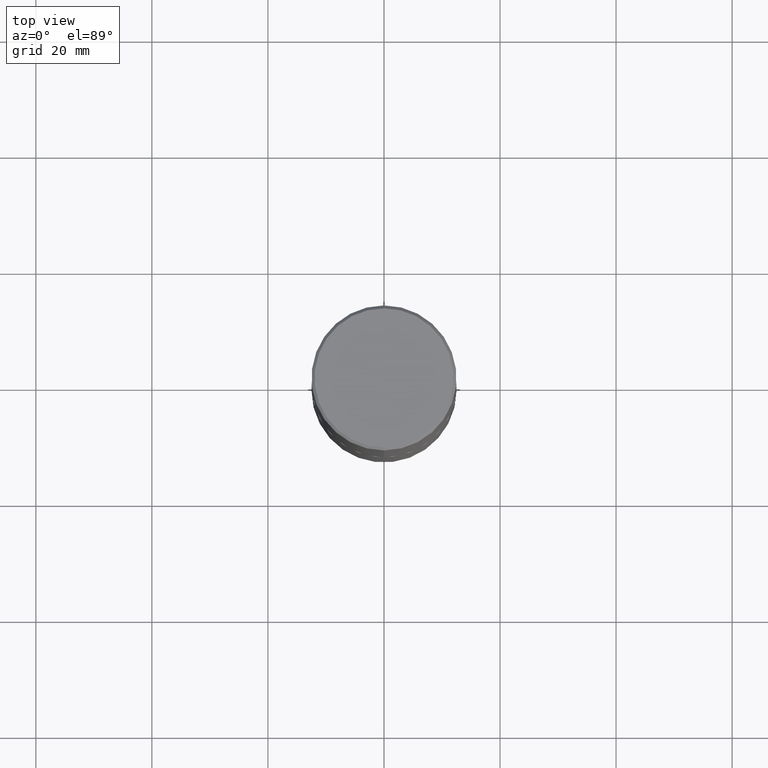
[diagram: clean part render]
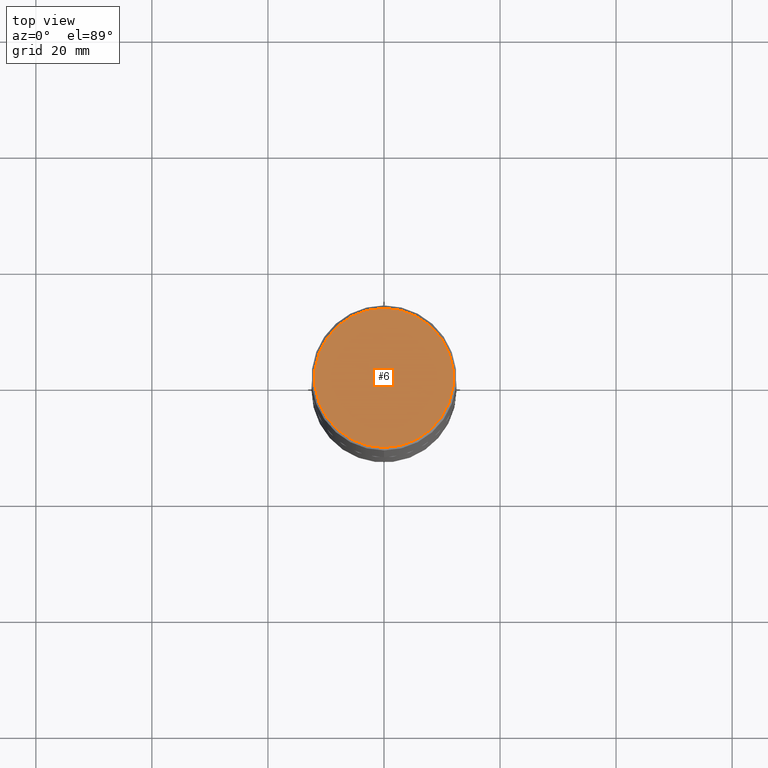
[diagram: same view with one face highlighted and labeled with its STEP entity id]
A machine part, top view. The second image highlights one B-rep face of the part: STEP entity #6.
In plain terms, the highlighted planar face has unit normal (0, -0, -1).
Its self-contained STEP definition (entity closure, byte-faithful):
#6 = ADVANCED_FACE ( 'NONE', ( #133 ), #112, .F. ) ;
#7 = CARTESIAN_POINT ( 'NONE',  ( -5.508856381705404921E-45, 7.854569916190676353E-31, 2.251160947276086573E-16 ) ) ;
#9 = VERTEX_POINT ( 'NONE', #141 ) ;
#28 = VERTEX_POINT ( 'NONE', #212 ) ;
#64 = AXIS2_PLACEMENT_3D ( 'NONE', #7, #81, #317 ) ;
#79 = CIRCLE ( 'NONE', #153, 0.4721499999999996255 ) ;
#81 = DIRECTION ( 'NONE',  ( -2.447117958567619178E-29, 3.489119658767506053E-15, 1.000000000000000000 ) ) ;
#83 = ORIENTED_EDGE ( 'NONE', *, *, #399, .T. ) ;
#87 = AXIS2_PLACEMENT_3D ( 'NONE', #167, #238, #203 ) ;
#102 = ORIENTED_EDGE ( 'NONE', *, *, #392, .T. ) ;
#112 = PLANE ( 'NONE',  #87 ) ;
#130 = DIRECTION ( 'NONE',  ( -2.447117958567619178E-29, 3.489119658767506053E-15, 1.000000000000000000 ) ) ;
#133 = FACE_OUTER_BOUND ( 'NONE', #169, .T. ) ;
#141 = CARTESIAN_POINT ( 'NONE',  ( -3.307789109625541747E-15, -0.4721499999999996255, 1.872503941614685503E-15 ) ) ;
#153 = AXIS2_PLACEMENT_3D ( 'NONE', #291, #130, #166 ) ;
#166 = DIRECTION ( 'NONE',  ( -6.982962677686265922E-15, -1.000000000000000000, 3.489119658767506053E-15 ) ) ;
#167 = CARTESIAN_POINT ( 'NONE',  ( 3.297005828269567997E-15, 0.4721499999999996255, -1.534829799523272196E-15 ) ) ;
#169 = EDGE_LOOP ( 'NONE', ( #102, #83 ) ) ;
#203 = DIRECTION ( 'NONE',  ( 6.982962677686265922E-15, 1.000000000000000000, -3.489119658767506053E-15 ) ) ;
#212 = CARTESIAN_POINT ( 'NONE',  ( 3.366835455046432084E-15, 0.4721499999999996255, -1.422271752159468089E-15 ) ) ;
#238 = DIRECTION ( 'NONE',  ( 2.447117958567618897E-29, -3.489119658767506053E-15, -1.000000000000000000 ) ) ;
#291 = CARTESIAN_POINT ( 'NONE',  ( -5.508856381705404921E-45, 7.854569916190676353E-31, 2.251160947276086573E-16 ) ) ;
#317 = DIRECTION ( 'NONE',  ( -6.982962677686265922E-15, -1.000000000000000000, 3.489119658767506053E-15 ) ) ;
#327 = CIRCLE ( 'NONE', #64, 0.4721499999999996255 ) ;
#392 = EDGE_CURVE ( 'NONE', #28, #9, #327, .T. ) ;
#399 = EDGE_CURVE ( 'NONE', #9, #28, #79, .T. ) ;